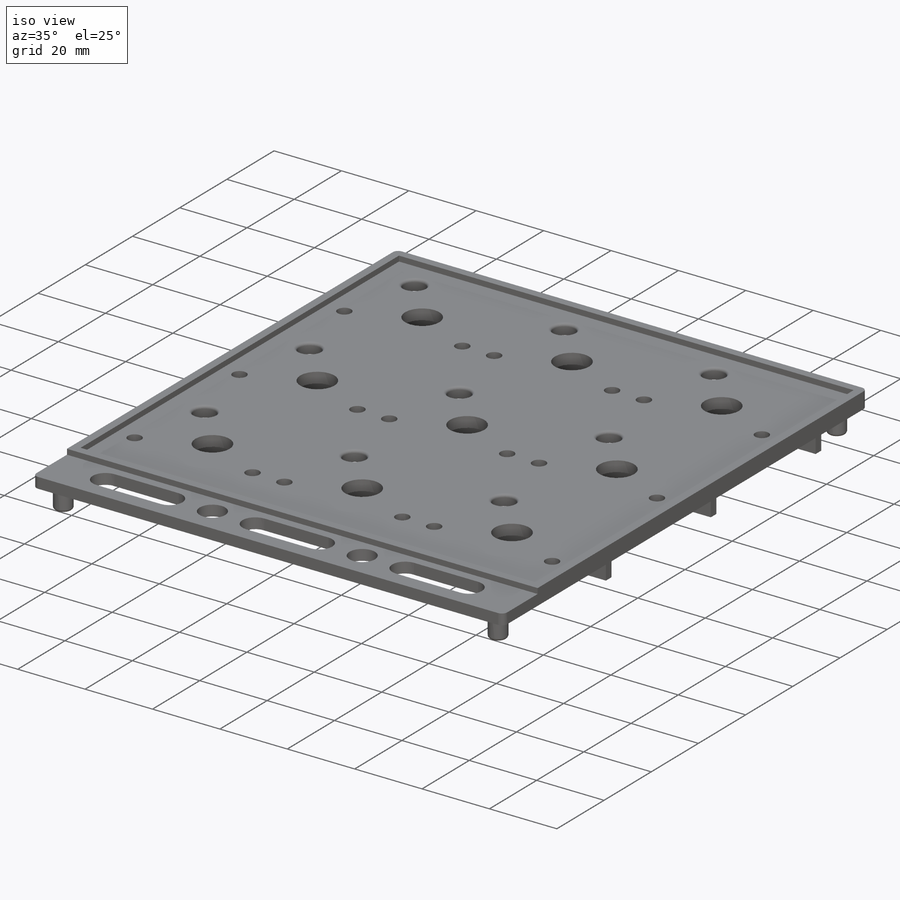
[diagram: iso view]
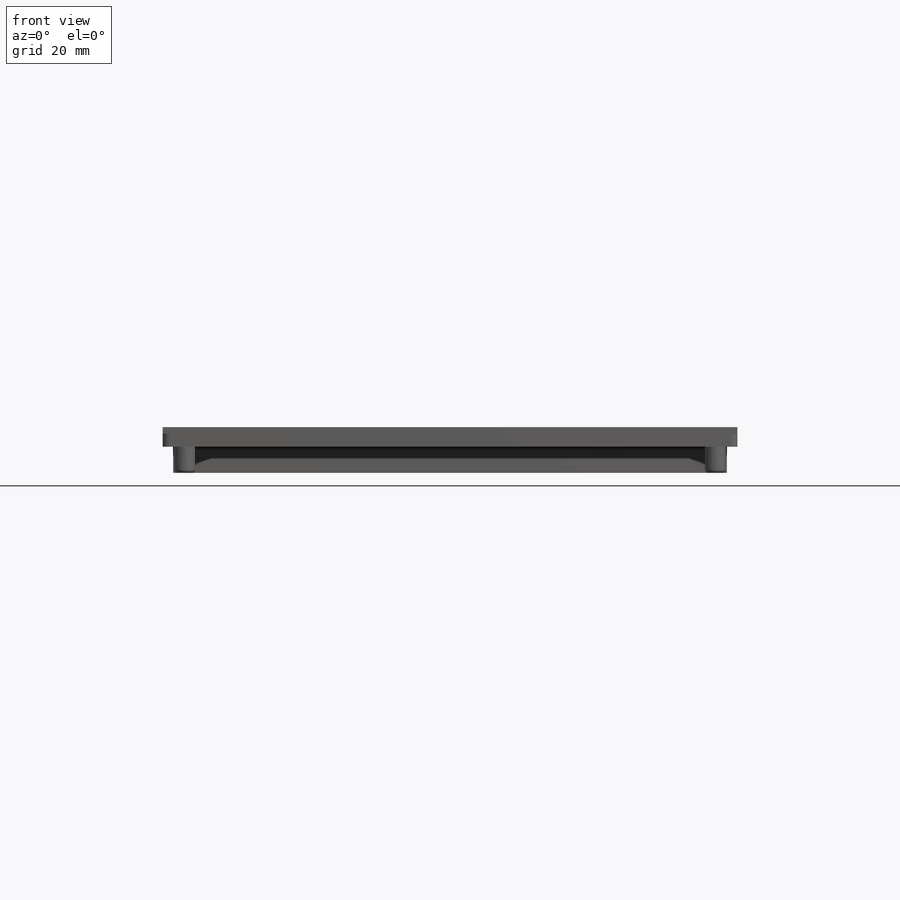
[diagram: front view]
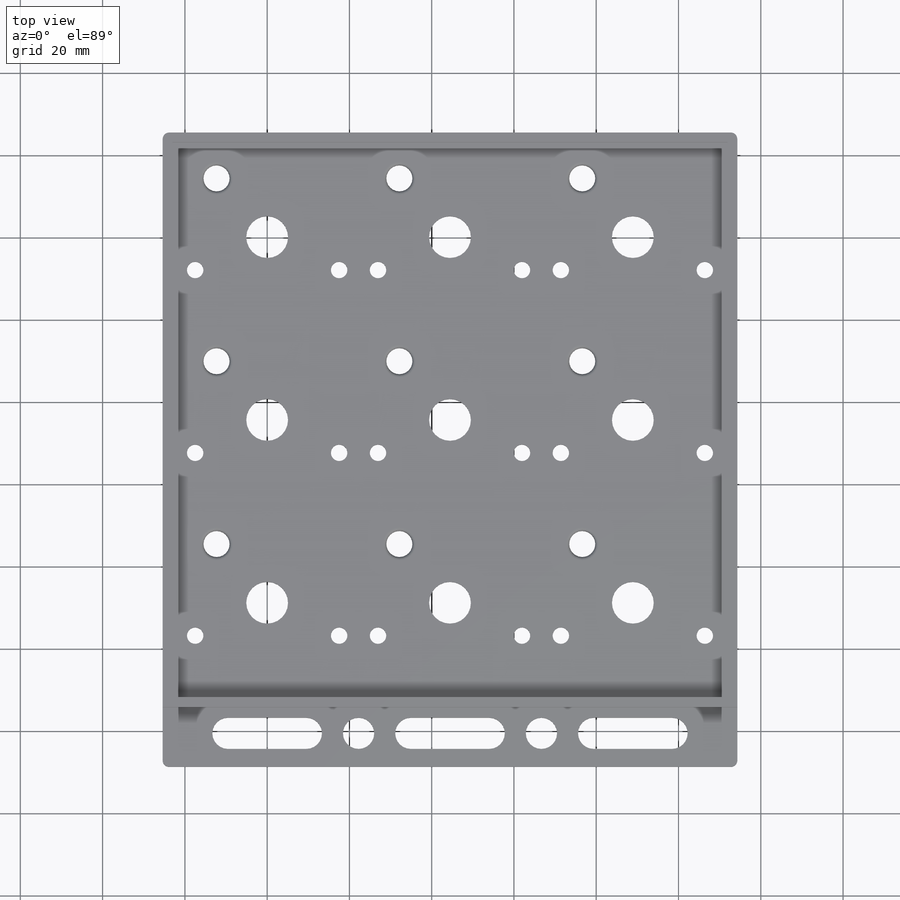
[diagram: top view]
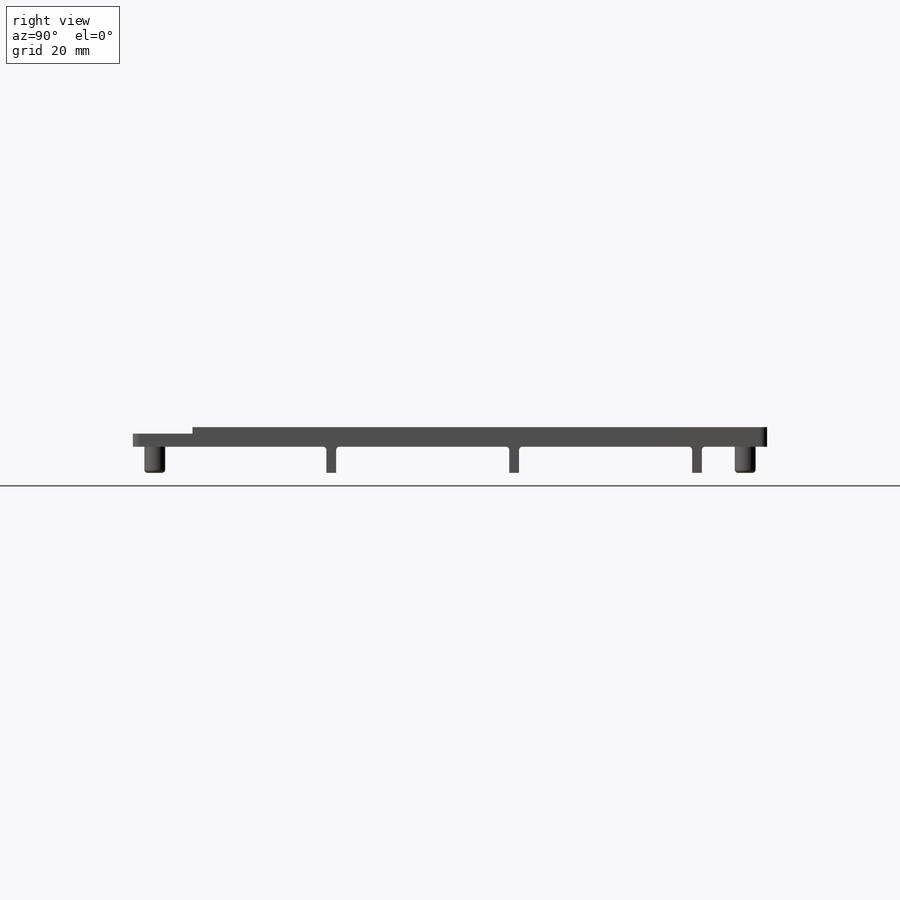
[diagram: right view]
SOLIDWORKS PART (.sldprt)
format: sldprt  version: not decoded by parser v0  size: 648,704 bytes
history: native  units: mm
features: sketch x8, extrude x5, cut_extrude x3, fillet x3, material x1, pattern_linear x1 (+12 scaffold rows collapsed)
feature tree (33):
  scaffold x12  (default folders/planes/origin — collapsed)
  material  "Material <not specified>"
  sketch  "Sketch1"  dims[c1.D3=4.5mm c1.D4=4.5mm c1.D5=10.16mm c1.D6=4.2mm c1.D1=10.16mm c1.D2=4.0mm c2.D4=4.0mm c2.D5=4.5mm c2.D13=4.0mm c2.D1=127.0mm c2.D2=127.0mm c2.D7=15.24mm c2.D8=8.0mm c2.D9=8.0mm c2.D10=35.0mm c2.D11=17.5mm c2.D12=22.225mm c3.D13=127.0mm c3.D14=127.0mm c3.D1=31.75mm c3.D3=7.8994mm c3.D4=25.4mm c3.D5=35.0mm c3.D6=8.0mm c3.D7=25.4mm c3.D8=0.0mm c3.D9=~154.20848mm c3.D10=139.7mm c4.D13=17.5mm c4.D11=3.0 c4.D12=3.0]
  extrude  "Boss-Extrude4"  Depth=3.175mm
  sketch  "Sketch4"  dims[c1.D1=~16.88973mm c1.D2=~14.50848mm c2.D1=~16.88973mm c2.D2=~14.50848mm c2.D3=~2.38125mm]
  extrude  "Boss-Extrude7"  Depth=1.5875mm
  sketch  "Sketch5"  dims[c1.D1=~10.498391mm c1.D2=~10.498391mm c1.D3=6.35mm c2.D2=6.35mm c2.D5=6.35mm c2.D1=~17.44345mm c3.D2=26.9875mm c3.D1=11.11mm c4.D2=~13.096875mm c4.D3=3.0 c4.D4=3.0]
  cut_extrude  "Cut-Extrude1"  [1 undecoded]
  sketch  "Sketch7"  dims[c1.D4=~7.589851mm c1.D9=~7.589851mm c1.D1=0.0mm c1.D2=19.05mm c2.D4=12.7mm c2.D5=12.7mm c2.D6=12.7mm c2.D7=12.7mm c2.D8=~7.01643mm c2.D9=~7.49205mm c3.D8=6.35mm c3.D9=6.35mm c4.D8=6.35mm c4.D9=6.35mm c4.D10=6.35mm c4.D11=6.35mm c4.D12=6.35mm c4.D3=3.0]
  cut_extrude  "Cut-Extrude2"  [1 undecoded]
  fillet  "Fillet1"  Radius=0.79375mm
  sketch  "Sketch8"  dims[D1=4.7625mm D2=~2.38125mm]
  extrude  "Boss-Extrude8"  Depth=6.35mm
  pattern_linear  "LPattern2"  Count1=3 Count2=1 Spacing1=44.45mm Spacing2=2.54mm
  sketch  "Sketch9"  dims[D1=2.54mm D2=2.54mm D3=2.54mm D4=2.54mm]
  cut_extrude  "Cut-Extrude3"  Depth=6.35mm
  sketch  "Sketch10"  dims[D1=~2.38125mm D2=~2.38125mm D3=~2.38125mm D4=~2.38125mm]
  extrude  "Boss-Extrude9"  Depth=1.5875mm
  sketch  "Sketch11"  dims[c1.D2=5.08mm c1.D3=2.54mm c1.D4=~7.578022mm c1.D5=~7.578022mm c1.D6=5.08mm c1.D7=~8.083224mm c1.D8=5.08mm c1.D9=5.08mm c1.D10=~7.072821mm c1.D11=~7.072821mm c1.D12=5.08mm c1.D1=5.334mm c2.D3=5.334mm c2.D4=5.334mm c2.D5=5.334mm c2.D7=5.334mm c2.D9=5.334mm c2.D10=5.334mm c2.D11=5.334mm]
  extrude  "Boss-Extrude10"  Depth=6.35mm
  fillet  "Fillet5"  Radius=0.79375mm
  fillet  "Fillet6"  Radius=1.5875mm
decode coverage: 18 of 20 modeling features carry decoded parameters
note: ~ marks probable driven/reference dimensions
note: 2 parameter values undecoded
note: suppression state not decoded; provenance and decode notes live in map.json
